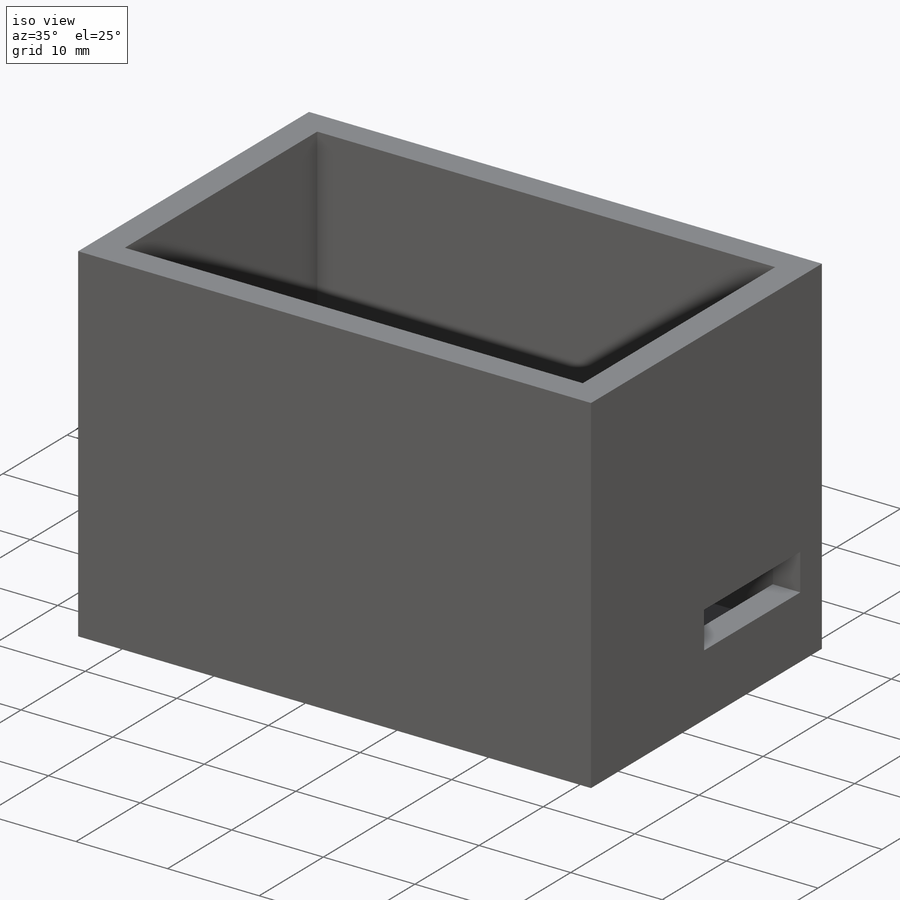
[diagram: iso view]
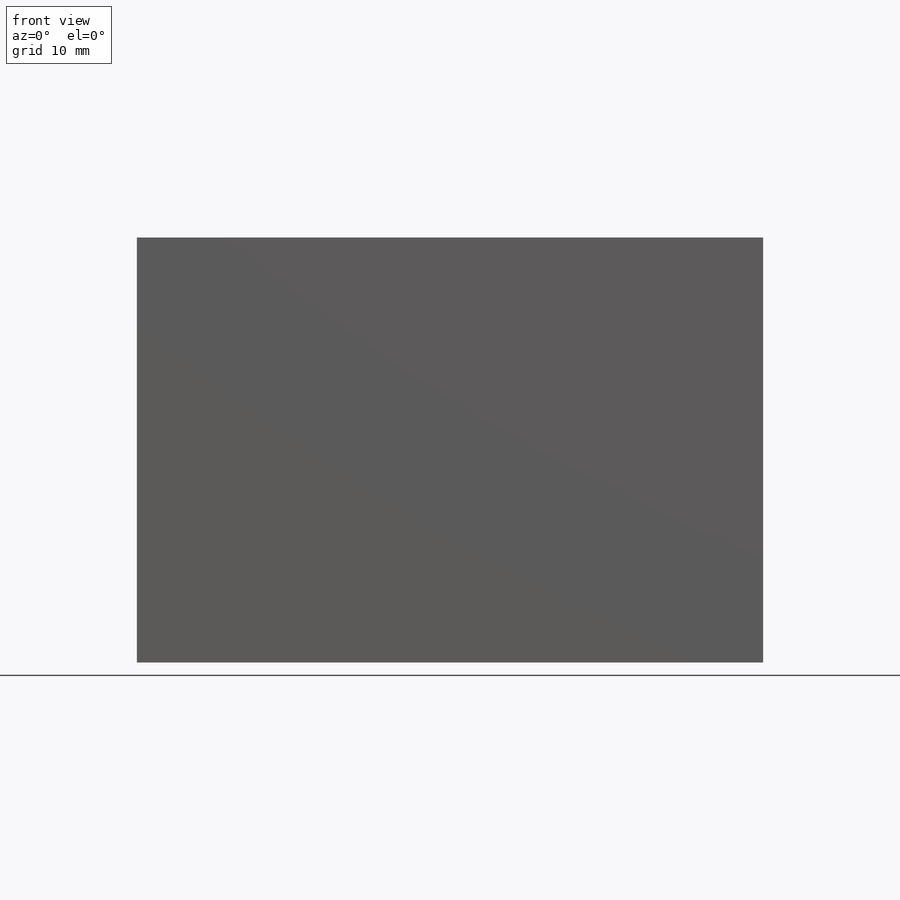
[diagram: front view]
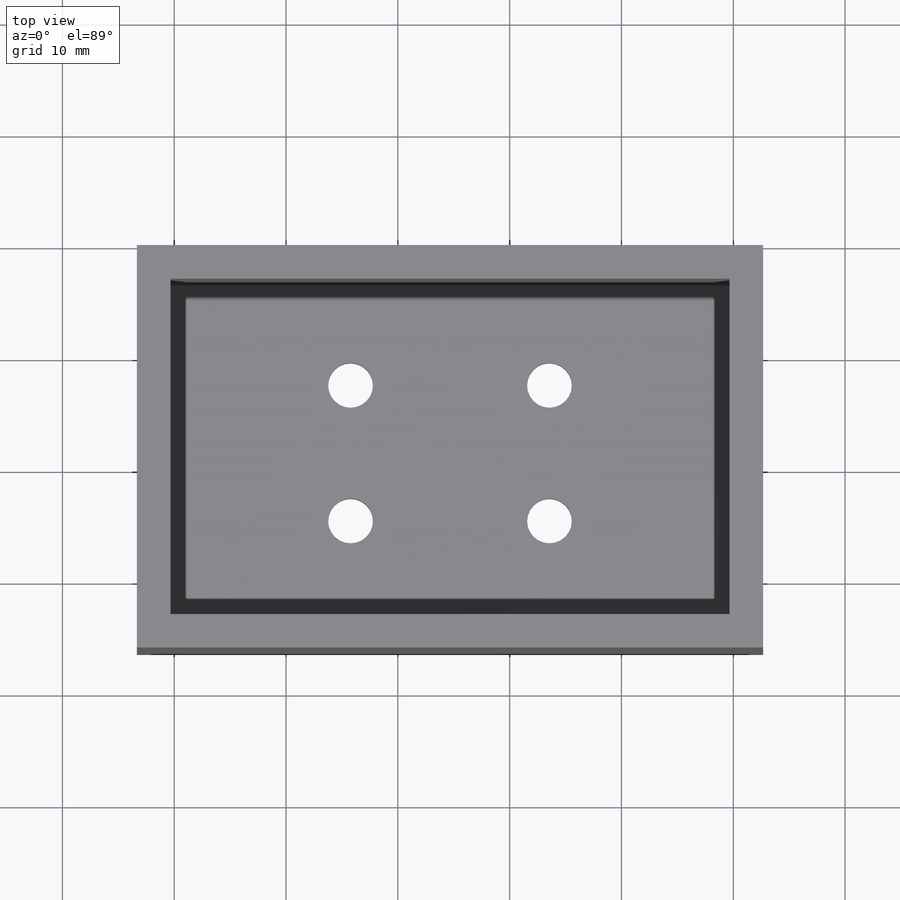
[diagram: top view]
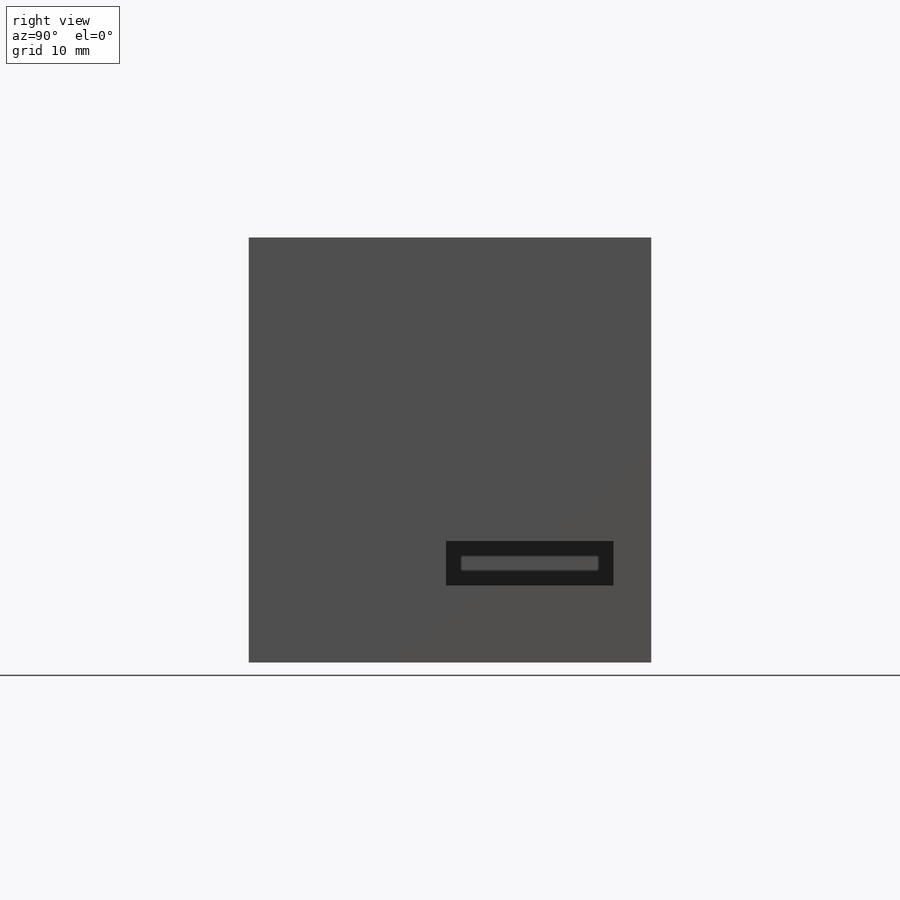
[diagram: right view]
SOLIDWORKS PART (.sldprt)
format: sldprt  version: not decoded by parser v0  size: 147,968 bytes
history: native  units: mm
features: plane x3, sketch x3, cut_extrude x2, material x1, extrude x1, shell x1 (+9 scaffold rows collapsed)
feature tree (20):
  scaffold x9  (default folders/planes/origin — collapsed)
  material  "Material <não especificado>"
  plane  "Plano frontal"
  plane  "Plano superior"
  plane  "Plano direito"
  sketch  "Esboço1"  dims[D1=50.0mm D2=30.0mm]
  extrude  "Ressalto-extrusão1"  Depth=35mm
  shell  "Casca1"  Thickness=3mm
  sketch  "Esboço3"  dims[D1=15.0mm D2=4.0mm]
  cut_extrude  "Corte-extrusão2"  Depth=35mm
  sketch  "Esboço4"  dims[D1=~2.105449mm]
  cut_extrude  "Corte-extrusão3"  [1 undecoded]
decode coverage: 6 of 7 modeling features carry decoded parameters
note: ~ marks probable driven/reference dimensions
note: 1 parameter value undecoded
note: suppression state not decoded; provenance and decode notes live in map.json
